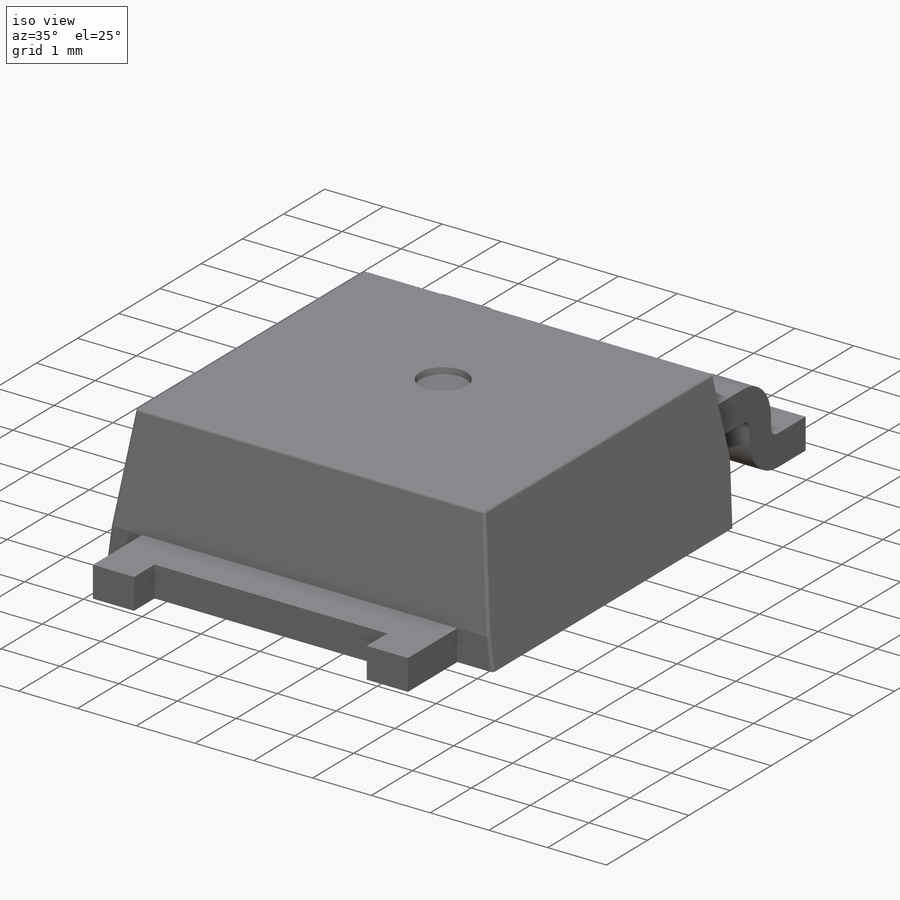
[diagram: iso view]
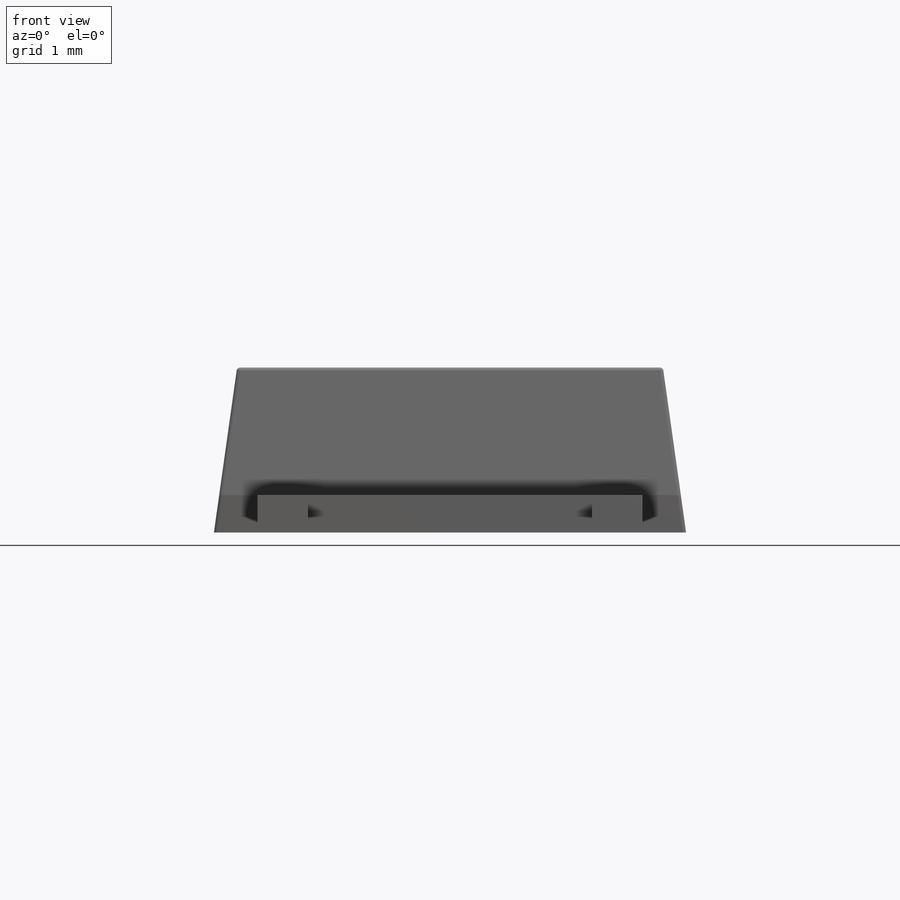
[diagram: front view]
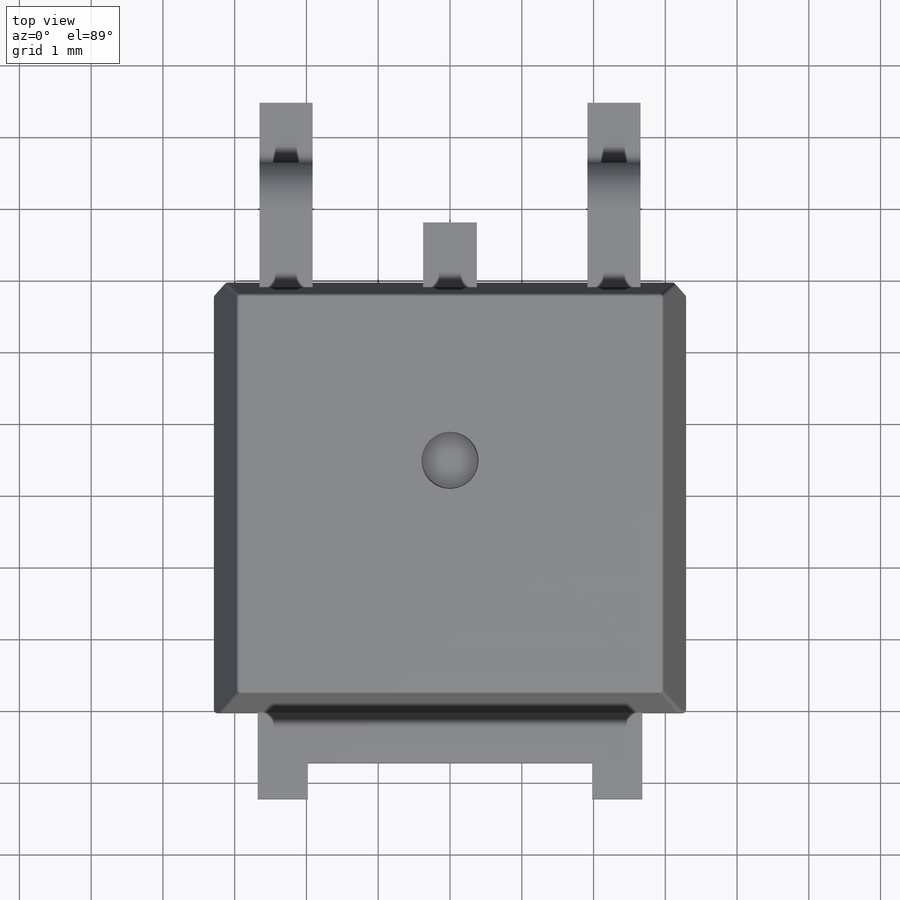
[diagram: top view]
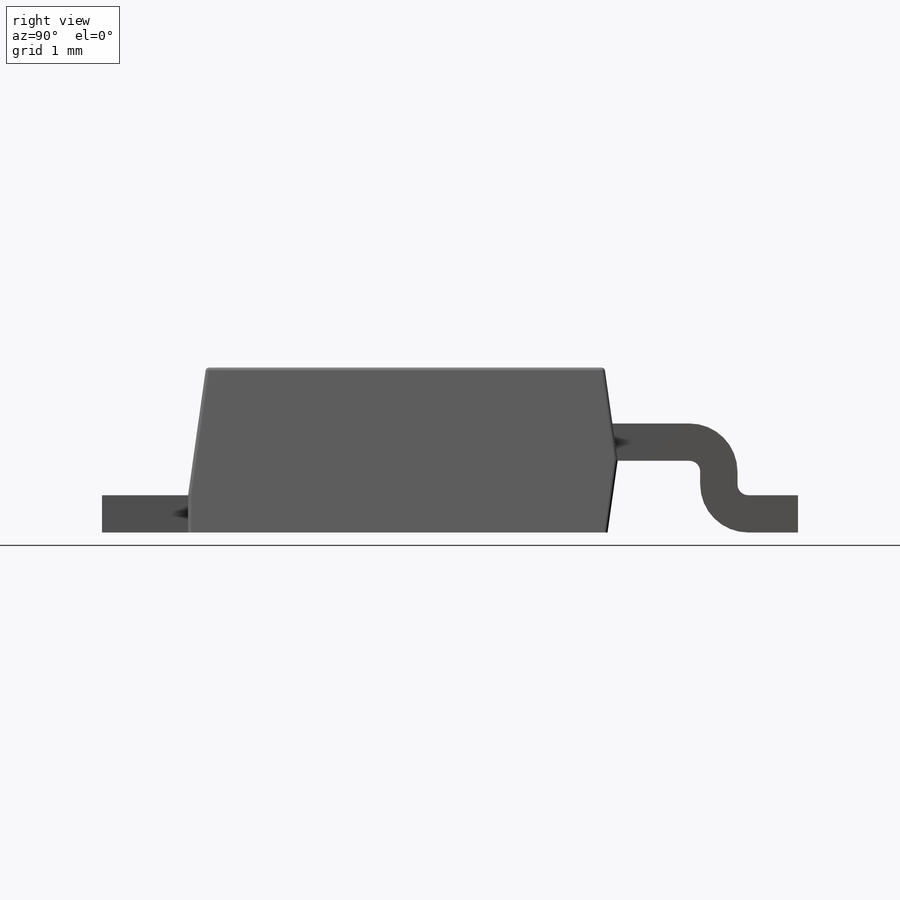
[diagram: right view]
SOLIDWORKS PART (.sldprt)
format: sldprt  version: not decoded by parser v0  size: 354,816 bytes
history: native  units: mm
features: sketch x7, extrude x4, fillet x3, cut_extrude x2, material x1, plane x1, pattern_linear x1 (+12 scaffold rows collapsed)
feature tree (31):
  scaffold x12  (default folders/planes/origin — collapsed)
  material  "Material <not specified>"
  plane  "Plane1"  Offset=2.285mm
  sketch  "Sketch1"  dims[D1=6.58mm D2=6.2mm D3=3.29mm D4=3.1mm]
  extrude  "Extrude1"  Depth=2.3mm
  sketch  "Sketch4"  dims[c1.D1=~1.424048mm c2.D1=82.0deg c2.D2=1.0mm c2.D3=0.52mm]
  cut_extrude  "Cut-Extrude1"  [1 undecoded]
  sketch  "Sketch5"  dims[D1=5.36mm D2=2.68mm D3=1.2mm D4=0.7mm D5=0.7mm D6=0.5mm]
  extrude  "Extrude3"  Depth=0.52mm
  sketch  "Sketch2"  dims[c1.D1=0.52mm c1.D2=0.52mm c1.D3=1.7mm c1.D4=0.08mm c1.D5=1.2mm c1.D6=0.52mm c1.D7=0.8mm c2.D7=63.0deg c2.D4=0.17mm c2.D8=1.0mm c3.D7=9.7mm c3.D9=1.2mm c3.D3=1.15mm]
  extrude  "Extrude2"  Depth=0.37mm
  pattern_linear  "LPattern1"  Count1=2 Count2=1 Spacing1=4.57mm Spacing2=2.3mm
  sketch  "Sketch6"  dims[D1=0.52mm D2=0.83mm]
  extrude  "Extrude4"  Depth=0.375mm
  fillet  "Fillet1"  Radius=0.15mm
  fillet  "Fillet2"  Radius=0.67mm
  sketch  "Sketch7"  dims[D2=0.8mm D1=2.5mm]
  cut_extrude  "Cut-Extrude2"  Depth=0.1mm
  fillet  "Fillet3"  Radius=0.05mm
  sketch  "Component_Outline"
decode coverage: 15 of 17 modeling features carry decoded parameters
note: ~ marks probable driven/reference dimensions
note: 1 parameter value undecoded
note: suppression state not decoded; provenance and decode notes live in map.json
